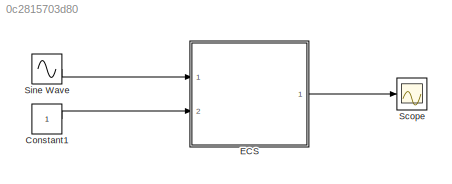
MODEL slx_0c2815703d80
KIND model
CONFIG AbsTol = auto
CONFIG FixedStep = 0.001
CONFIG MaxStep = auto
CONFIG MinStep = auto
CONFIG RelTol = 1e-3
CONFIG SampleTimeConstraint = Unconstrained
CONFIG Solver = FixedStepAuto
CONFIG SolverMode = Auto
CONFIG SolverName = FixedStepAuto
CONFIG StartTime = 0.0
CONFIG StopTime = 1
BLOCK [Constant] Constant1
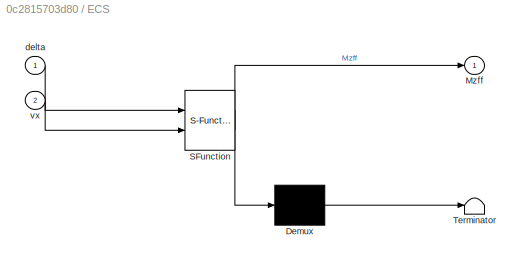
BLOCK [SubSystem] ECS
  ErrorFcn = Stateflow.Translate.translate
  InitFcn = clc\nclear all\n\nCaf = 0.5;\nCar = 0.3;\nlf = 1.35;\nlr = 1.23;\nmv = 1529.98;\nvx = 0.5;\nIz = 4605;\nKus = 10;\ndelta = 0.2;\nrho = 1;\nbeta_max = 0.4;\nr_max = 1;\nMz_max = 2;\n\nA = [-2*(Caf + Car)/(mv*vx), -1-2*(lf * Caf - lr * Car)/(mv*vx*vx); -2*(lf * Caf - lr * Car)/Iz , -2*(lf*lf*Caf + lr*lr*Car)/(Iz*vx)];\nBu = [0 ; 1/Iz];\nBu_aug = [0, 2*Caf/(mv * vx); 1/Iz, 2*lf*Caf/(Iz)];\nG = [2*Caf/(mv * vx) 2*lf*Caf/...<+235ch>
  PermitHierarchicalResolution = ExplicitOnly
  Ports = [2, 1]
  RequestExecContextInheritance = off
  SFBlockType = MATLAB Function
  TreatAsAtomicUnit = on
  Variant = off
BLOCK [Demux] ECS/ Demux 
  Outputs = 1
  Ports = [1, 1]
BLOCK [S-Function] ECS/ SFunction 
  EnableBusSupport = on
  FunctionName = sf_sfun
  Parameters = A,Bu,G,H,Kus,Mz_max,beta_max,gamma,gamma_aug,lf,lr,phi,phi_aug,r_max,rho
  PortCounts = [2 2]
  Ports = [2, 2]
  SFunctionDeploymentMode = off
  Tag = Stateflow S-Function ecssimulink 2
BLOCK [Terminator] ECS/ Terminator 
BLOCK [Outport] ECS/Mzff
  IconDisplay = Port number
BLOCK [Inport] ECS/delta
  IconDisplay = Port number
BLOCK [Inport] ECS/vx
  IconDisplay = Port number
  Port = 2
BLOCK [Scope] Scope
  Ports = [1]
  ScopeSpecificationString = Simulink.scopes.TimeScopeBlockCfg('CurrentConfiguration', extmgr.ConfigurationSet(extmgr.Configuration('Core','General UI',true),extmgr.Configuration('Core','Source UI',true),extmgr.Configuration('Sources','WiredSimulink',true),extmgr.Configuration('Visuals','Time Domain',true,'SerializedDisplays',{struct('MinYLimReal','-0.79856','MaxYLimReal','-0.65731','YLabelReal','','MinYLimMag','0.00000','Max...<+1352ch>
BLOCK [Sin] Sine Wave
  Amplitude = 0.1
  Bias = 0.5
  Ports = [0, 1]
  SampleTime = 0
LINE Constant1:1 -> ECS:2
LINE ECS:1 -> Scope:1
LINE Sine Wave:1 -> ECS:1
CHART ECS states=1 transitions=1
  STATE_LABEL 'eML_blk_kernel()'
  STATE_LABEL "SCRIPT:\nfunction Mzff  = fcn(delta, vx, Kus, beta_max, r_max, Mz_max, rho, lf, lr, phi_aug, gamma_aug, phi, gamma, H, A,Bu,G)\n%#codegen\n\nrd = vx / ((lf+lr) + Kus * vx *vx) * delta;\n\nQ = diag([rho, 1/(beta_max * beta_max), 1/(r_max * r_max)]);\nR = 1 / (Mz_max * Mz_max);\n\ncoder.extrinsic('dare');\nP = eye(3);\nP = dare(phi_aug, gamma_aug, Q, R);\nKa = inv(gamma_aug' * P * gamma_aug + R)*(gamma_aug'*P*p...<+193ch>"
